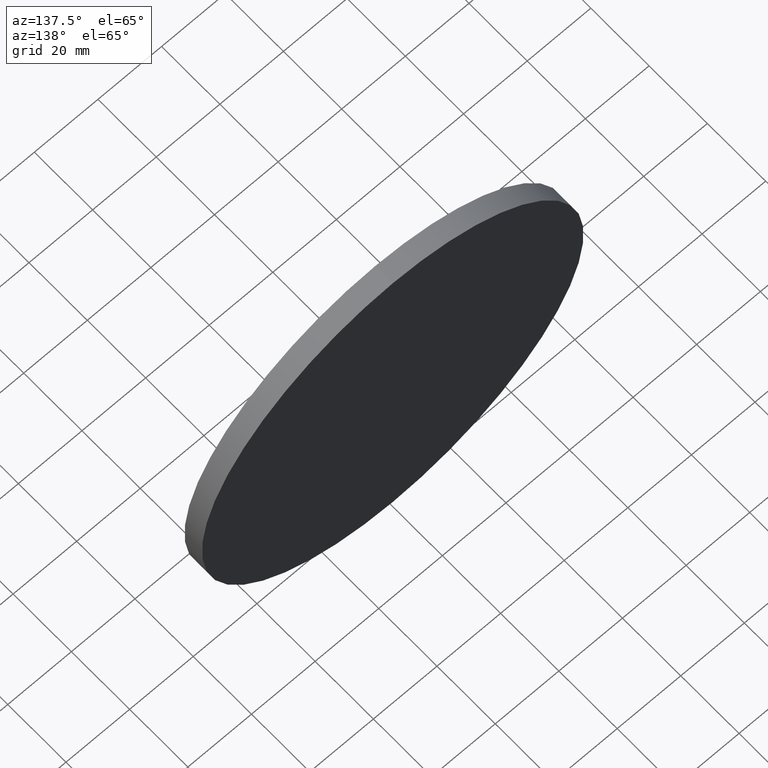
[diagram: clean part render]
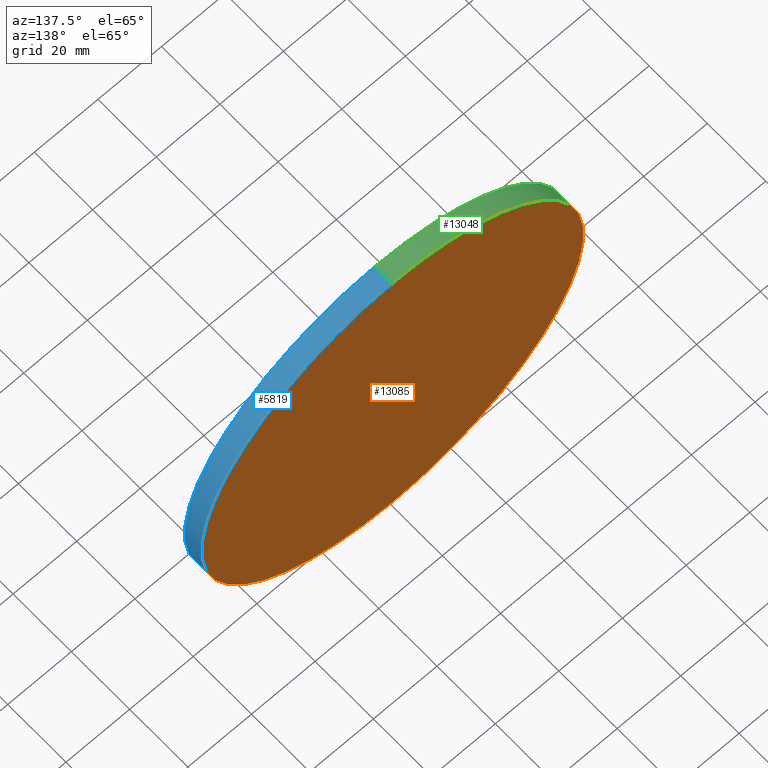
[diagram: same view with three faces highlighted in distinct colors, each labeled with its STEP entity id]
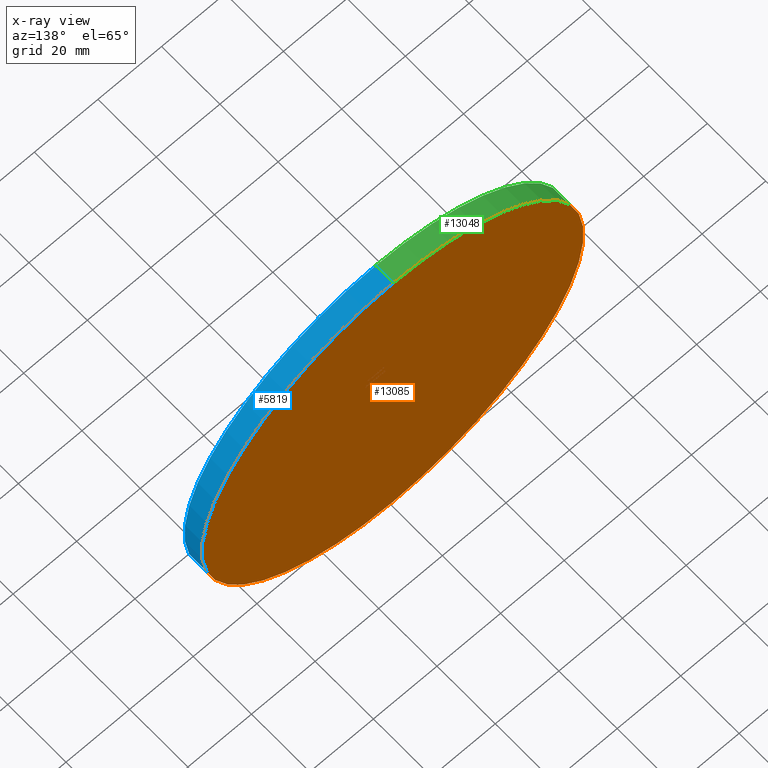
[diagram: x-ray of the same camera — body ghosted, the three highlighted faces saturated]
A machine part, auxiliary view with three faces highlighted in distinct colors.
The next image is the same camera in x-ray (body ghosted, the three faces saturated) — at least one of them is partly hidden behind the body in this view.
Their STEP definitions:

[orange] entity #13085 — the highlighted planar face has unit normal (0, 1, 0).
#185 = CARTESIAN_POINT ( 'NONE',  ( 7.347880794884118356E-15, 3.000000000000000000, 60.00000000000000000 ) ) ;
#989 = AXIS2_PLACEMENT_3D ( 'NONE', #8011, #2772, #13078 ) ;
#1736 = VERTEX_POINT ( 'NONE', #185 ) ;
#2156 = CARTESIAN_POINT ( 'NONE',  ( 0.000000000000000000, 3.000000000000000000, 0.000000000000000000 ) ) ;
#2772 = DIRECTION ( 'NONE',  ( 0.000000000000000000, 1.000000000000000000, 0.000000000000000000 ) ) ;
#3006 = CARTESIAN_POINT ( 'NONE',  ( 0.000000000000000000, 3.000000000000000000, 0.000000000000000000 ) ) ;
#3345 = VERTEX_POINT ( 'NONE', #3483 ) ;
#3483 = CARTESIAN_POINT ( 'NONE',  ( 0.000000000000000000, 3.000000000000000000, -60.00000000000000000 ) ) ;
#4064 = DIRECTION ( 'NONE',  ( 0.000000000000000000, 1.000000000000000000, 0.000000000000000000 ) ) ;
#4380 = ORIENTED_EDGE ( 'NONE', *, *, #12989, .T. ) ;
#4872 = AXIS2_PLACEMENT_3D ( 'NONE', #2156, #7386, #5354 ) ;
#5354 = DIRECTION ( 'NONE',  ( 0.000000000000000000, -0.000000000000000000, 1.000000000000000000 ) ) ;
#5600 = EDGE_LOOP ( 'NONE', ( #4380, #12961 ) ) ;
#5739 = FACE_OUTER_BOUND ( 'NONE', #5600, .T. ) ;
#7386 = DIRECTION ( 'NONE',  ( 0.000000000000000000, 1.000000000000000000, 0.000000000000000000 ) ) ;
#8011 = CARTESIAN_POINT ( 'NONE',  ( 0.000000000000000000, 3.000000000000000000, 0.000000000000000000 ) ) ;
#8551 = CIRCLE ( 'NONE', #12354, 60.00000000000000000 ) ;
#8771 = CIRCLE ( 'NONE', #989, 60.00000000000000000 ) ;
#9310 = EDGE_CURVE ( 'NONE', #1736, #3345, #8771, .T. ) ;
#12354 = AXIS2_PLACEMENT_3D ( 'NONE', #3006, #4064, #12465 ) ;
#12465 = DIRECTION ( 'NONE',  ( 0.000000000000000000, 0.000000000000000000, 1.000000000000000000 ) ) ;
#12603 = PLANE ( 'NONE',  #4872 ) ;
#12961 = ORIENTED_EDGE ( 'NONE', *, *, #9310, .T. ) ;
#12989 = EDGE_CURVE ( 'NONE', #3345, #1736, #8551, .T. ) ;
#13078 = DIRECTION ( 'NONE',  ( 0.000000000000000000, 0.000000000000000000, 1.000000000000000000 ) ) ;
#13085 = ADVANCED_FACE ( 'NONE', ( #5739 ), #12603, .T. ) ;

[blue] entity #5819 — the highlighted cylindrical surface (partial cylindrical patch) has radius 60 mm, axis along (-0, -1, -0).
#185 = CARTESIAN_POINT ( 'NONE',  ( 7.347880794884118356E-15, 3.000000000000000000, 60.00000000000000000 ) ) ;
#273 = CARTESIAN_POINT ( 'NONE',  ( 7.347880794884118356E-15, 3.000000000000000000, 60.00000000000000000 ) ) ;
#323 = FACE_OUTER_BOUND ( 'NONE', #5035, .T. ) ;
#543 = CARTESIAN_POINT ( 'NONE',  ( 7.347880794884118356E-15, -3.000000000000000000, 60.00000000000000000 ) ) ;
#812 = LINE ( 'NONE', #8753, #1456 ) ;
#989 = AXIS2_PLACEMENT_3D ( 'NONE', #8011, #2772, #13078 ) ;
#993 = VERTEX_POINT ( 'NONE', #6756 ) ;
#1008 = CIRCLE ( 'NONE', #1480, 60.00000000000000000 ) ;
#1456 = VECTOR ( 'NONE', #4501, 1000.000000000000000 ) ;
#1480 = AXIS2_PLACEMENT_3D ( 'NONE', #6457, #5676, #6690 ) ;
#1736 = VERTEX_POINT ( 'NONE', #185 ) ;
#2400 = ORIENTED_EDGE ( 'NONE', *, *, #8880, .T. ) ;
#2483 = EDGE_CURVE ( 'NONE', #7017, #993, #1008, .T. ) ;
#2772 = DIRECTION ( 'NONE',  ( 0.000000000000000000, 1.000000000000000000, 0.000000000000000000 ) ) ;
#3345 = VERTEX_POINT ( 'NONE', #3483 ) ;
#3483 = CARTESIAN_POINT ( 'NONE',  ( 0.000000000000000000, 3.000000000000000000, -60.00000000000000000 ) ) ;
#3992 = LINE ( 'NONE', #273, #5144 ) ;
#4501 = DIRECTION ( 'NONE',  ( -0.000000000000000000, -1.000000000000000000, -0.000000000000000000 ) ) ;
#5003 = DIRECTION ( 'NONE',  ( 0.000000000000000000, 0.000000000000000000, -1.000000000000000000 ) ) ;
#5035 = EDGE_LOOP ( 'NONE', ( #10821, #2400, #5282, #12048 ) ) ;
#5144 = VECTOR ( 'NONE', #10789, 1000.000000000000000 ) ;
#5282 = ORIENTED_EDGE ( 'NONE', *, *, #2483, .T. ) ;
#5647 = AXIS2_PLACEMENT_3D ( 'NONE', #8289, #10423, #5003 ) ;
#5676 = DIRECTION ( 'NONE',  ( 0.000000000000000000, 1.000000000000000000, 0.000000000000000000 ) ) ;
#5819 = ADVANCED_FACE ( 'NONE', ( #323 ), #12153, .T. ) ;
#6457 = CARTESIAN_POINT ( 'NONE',  ( 0.000000000000000000, -3.000000000000000000, 0.000000000000000000 ) ) ;
#6690 = DIRECTION ( 'NONE',  ( 0.000000000000000000, 0.000000000000000000, 1.000000000000000000 ) ) ;
#6756 = CARTESIAN_POINT ( 'NONE',  ( 0.000000000000000000, -3.000000000000000000, -60.00000000000000000 ) ) ;
#7017 = VERTEX_POINT ( 'NONE', #543 ) ;
#8011 = CARTESIAN_POINT ( 'NONE',  ( 0.000000000000000000, 3.000000000000000000, 0.000000000000000000 ) ) ;
#8289 = CARTESIAN_POINT ( 'NONE',  ( 0.000000000000000000, 3.000000000000000000, 0.000000000000000000 ) ) ;
#8753 = CARTESIAN_POINT ( 'NONE',  ( 0.000000000000000000, 3.000000000000000000, -60.00000000000000000 ) ) ;
#8771 = CIRCLE ( 'NONE', #989, 60.00000000000000000 ) ;
#8880 = EDGE_CURVE ( 'NONE', #1736, #7017, #3992, .T. ) ;
#9310 = EDGE_CURVE ( 'NONE', #1736, #3345, #8771, .T. ) ;
#10423 = DIRECTION ( 'NONE',  ( -0.000000000000000000, -1.000000000000000000, -0.000000000000000000 ) ) ;
#10789 = DIRECTION ( 'NONE',  ( -0.000000000000000000, -1.000000000000000000, -0.000000000000000000 ) ) ;
#10821 = ORIENTED_EDGE ( 'NONE', *, *, #9310, .F. ) ;
#12048 = ORIENTED_EDGE ( 'NONE', *, *, #13533, .F. ) ;
#12153 = CYLINDRICAL_SURFACE ( 'NONE', #5647, 60.00000000000000000 ) ;
#13078 = DIRECTION ( 'NONE',  ( 0.000000000000000000, 0.000000000000000000, 1.000000000000000000 ) ) ;
#13533 = EDGE_CURVE ( 'NONE', #3345, #993, #812, .T. ) ;

[green] entity #13048 — the highlighted cylindrical surface (partial cylindrical patch) has radius 60 mm, axis along (-0, -1, -0).
#81 = AXIS2_PLACEMENT_3D ( 'NONE', #10994, #9817, #3598 ) ;
#185 = CARTESIAN_POINT ( 'NONE',  ( 7.347880794884118356E-15, 3.000000000000000000, 60.00000000000000000 ) ) ;
#273 = CARTESIAN_POINT ( 'NONE',  ( 7.347880794884118356E-15, 3.000000000000000000, 60.00000000000000000 ) ) ;
#543 = CARTESIAN_POINT ( 'NONE',  ( 7.347880794884118356E-15, -3.000000000000000000, 60.00000000000000000 ) ) ;
#812 = LINE ( 'NONE', #8753, #1456 ) ;
#993 = VERTEX_POINT ( 'NONE', #6756 ) ;
#1042 = DIRECTION ( 'NONE',  ( 0.000000000000000000, 0.000000000000000000, -1.000000000000000000 ) ) ;
#1456 = VECTOR ( 'NONE', #4501, 1000.000000000000000 ) ;
#1736 = VERTEX_POINT ( 'NONE', #185 ) ;
#2084 = ORIENTED_EDGE ( 'NONE', *, *, #8880, .F. ) ;
#2959 = EDGE_CURVE ( 'NONE', #993, #7017, #4433, .T. ) ;
#3006 = CARTESIAN_POINT ( 'NONE',  ( 0.000000000000000000, 3.000000000000000000, 0.000000000000000000 ) ) ;
#3345 = VERTEX_POINT ( 'NONE', #3483 ) ;
#3483 = CARTESIAN_POINT ( 'NONE',  ( 0.000000000000000000, 3.000000000000000000, -60.00000000000000000 ) ) ;
#3598 = DIRECTION ( 'NONE',  ( 0.000000000000000000, 0.000000000000000000, 1.000000000000000000 ) ) ;
#3992 = LINE ( 'NONE', #273, #5144 ) ;
#4064 = DIRECTION ( 'NONE',  ( 0.000000000000000000, 1.000000000000000000, 0.000000000000000000 ) ) ;
#4433 = CIRCLE ( 'NONE', #81, 60.00000000000000000 ) ;
#4501 = DIRECTION ( 'NONE',  ( -0.000000000000000000, -1.000000000000000000, -0.000000000000000000 ) ) ;
#4736 = CYLINDRICAL_SURFACE ( 'NONE', #12612, 60.00000000000000000 ) ;
#5144 = VECTOR ( 'NONE', #10789, 1000.000000000000000 ) ;
#5840 = ORIENTED_EDGE ( 'NONE', *, *, #13533, .T. ) ;
#6324 = CARTESIAN_POINT ( 'NONE',  ( 0.000000000000000000, 3.000000000000000000, 0.000000000000000000 ) ) ;
#6756 = CARTESIAN_POINT ( 'NONE',  ( 0.000000000000000000, -3.000000000000000000, -60.00000000000000000 ) ) ;
#7017 = VERTEX_POINT ( 'NONE', #543 ) ;
#8551 = CIRCLE ( 'NONE', #12354, 60.00000000000000000 ) ;
#8753 = CARTESIAN_POINT ( 'NONE',  ( 0.000000000000000000, 3.000000000000000000, -60.00000000000000000 ) ) ;
#8880 = EDGE_CURVE ( 'NONE', #1736, #7017, #3992, .T. ) ;
#9039 = EDGE_LOOP ( 'NONE', ( #2084, #11318, #5840, #12727 ) ) ;
#9817 = DIRECTION ( 'NONE',  ( 0.000000000000000000, 1.000000000000000000, 0.000000000000000000 ) ) ;
#10192 = FACE_OUTER_BOUND ( 'NONE', #9039, .T. ) ;
#10450 = DIRECTION ( 'NONE',  ( -0.000000000000000000, -1.000000000000000000, -0.000000000000000000 ) ) ;
#10789 = DIRECTION ( 'NONE',  ( -0.000000000000000000, -1.000000000000000000, -0.000000000000000000 ) ) ;
#10994 = CARTESIAN_POINT ( 'NONE',  ( 0.000000000000000000, -3.000000000000000000, 0.000000000000000000 ) ) ;
#11318 = ORIENTED_EDGE ( 'NONE', *, *, #12989, .F. ) ;
#12354 = AXIS2_PLACEMENT_3D ( 'NONE', #3006, #4064, #12465 ) ;
#12465 = DIRECTION ( 'NONE',  ( 0.000000000000000000, 0.000000000000000000, 1.000000000000000000 ) ) ;
#12612 = AXIS2_PLACEMENT_3D ( 'NONE', #6324, #10450, #1042 ) ;
#12727 = ORIENTED_EDGE ( 'NONE', *, *, #2959, .T. ) ;
#12989 = EDGE_CURVE ( 'NONE', #3345, #1736, #8551, .T. ) ;
#13048 = ADVANCED_FACE ( 'NONE', ( #10192 ), #4736, .T. ) ;
#13533 = EDGE_CURVE ( 'NONE', #3345, #993, #812, .T. ) ;